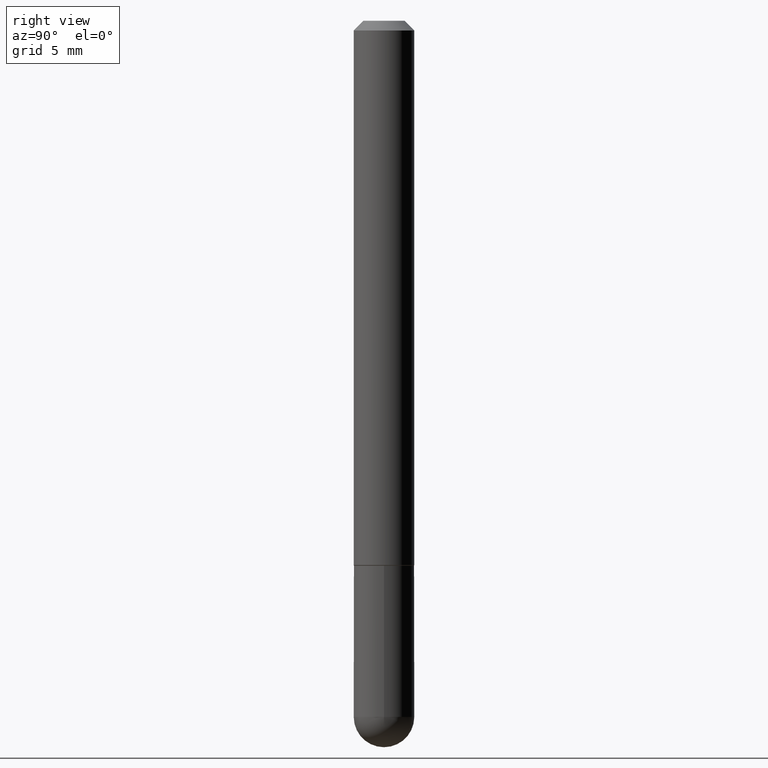
[diagram: clean part render]
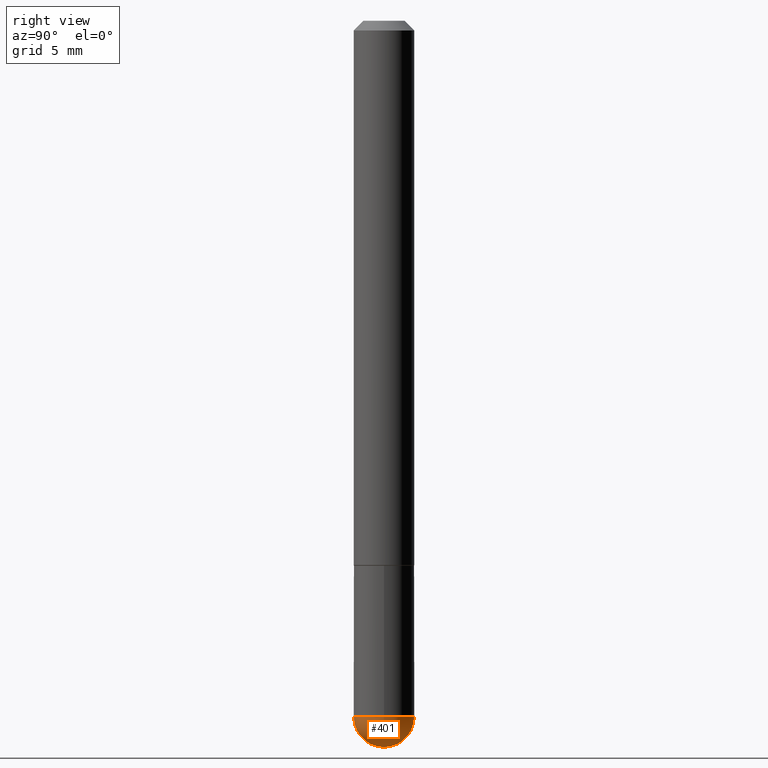
[diagram: same view with one face highlighted and labeled with its STEP entity id]
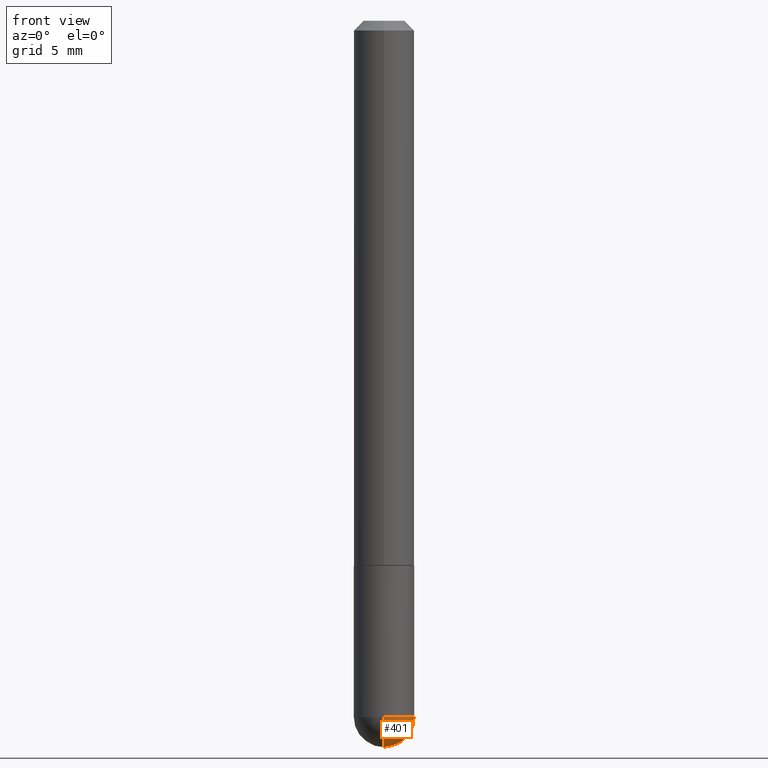
[diagram: same view with one face highlighted and labeled with its STEP entity id]
A machine part, right view. The second image highlights one B-rep face of the part: STEP entity #401.
A second angle (front view) of the same face is appended — the face is thin or edge-on in the first view.
In plain terms, the highlighted spherical surface has radius 1.5875 mm.
Its self-contained STEP definition (entity closure, byte-faithful):
#12 = EDGE_LOOP ( 'NONE', ( #211, #277, #181, #95 ) ) ;
#32 = CIRCLE ( 'NONE', #269, 0.06249999999999995143 ) ;
#49 = VERTEX_POINT ( 'NONE', #195 ) ;
#50 = AXIS2_PLACEMENT_3D ( 'NONE', #229, #352, #266 ) ;
#66 = FACE_OUTER_BOUND ( 'NONE', #12, .T. ) ;
#95 = ORIENTED_EDGE ( 'NONE', *, *, #118, .F. ) ;
#102 = SPHERICAL_SURFACE ( 'NONE', #50, 0.06250000000000018041 ) ;
#118 = EDGE_CURVE ( 'NONE', #370, #363, #32, .T. ) ;
#156 = DIRECTION ( 'NONE',  ( 6.982962677686266711E-15, 1.000000000000000000, 0.000000000000000000 ) ) ;
#157 = DIRECTION ( 'NONE',  ( 1.000000000000000000, -6.982962677686268288E-15, 0.000000000000000000 ) ) ;
#158 = DIRECTION ( 'NONE',  ( -7.105427357601001859E-15, -1.000000000000000000, 0.000000000000000000 ) ) ;
#181 = ORIENTED_EDGE ( 'NONE', *, *, #395, .F. ) ;
#183 = CARTESIAN_POINT ( 'NONE',  ( 3.184241630977247611E-29, -5.493186792727071849E-15, -1.437500000000000000 ) ) ;
#195 = CARTESIAN_POINT ( 'NONE',  ( 4.364351673554256397E-16, 0.06249999999999480971, -1.437500000000000444 ) ) ;
#196 = AXIS2_PLACEMENT_3D ( 'NONE', #384, #353, #263 ) ;
#203 = CIRCLE ( 'NONE', #196, 0.06249999999999995143 ) ;
#208 = AXIS2_PLACEMENT_3D ( 'NONE', #280, #309, #156 ) ;
#211 = ORIENTED_EDGE ( 'NONE', *, *, #271, .F. ) ;
#221 = CIRCLE ( 'NONE', #298, 0.06250000000000018041 ) ;
#223 = EDGE_CURVE ( 'NONE', #225, #49, #314, .T. ) ;
#225 = VERTEX_POINT ( 'NONE', #404 ) ;
#229 = CARTESIAN_POINT ( 'NONE',  ( 3.184241630977247611E-29, -5.493186792727071849E-15, -1.437500000000000000 ) ) ;
#250 = CARTESIAN_POINT ( 'NONE',  ( 3.515361408891134418E-29, -5.019004424587023131E-15, -1.437500000000000222 ) ) ;
#263 = DIRECTION ( 'NONE',  ( 1.000000000000000000, -6.982962677686268288E-15, 0.000000000000000000 ) ) ;
#266 = DIRECTION ( 'NONE',  ( 6.982962677686265922E-15, 1.000000000000000000, -4.370956789862807739E-15 ) ) ;
#269 = AXIS2_PLACEMENT_3D ( 'NONE', #250, #400, #157 ) ;
#271 = EDGE_CURVE ( 'NONE', #225, #370, #221, .T. ) ;
#277 = ORIENTED_EDGE ( 'NONE', *, *, #223, .T. ) ;
#280 = CARTESIAN_POINT ( 'NONE',  ( 3.184241630977247611E-29, -5.493186792727071849E-15, -1.437500000000000000 ) ) ;
#298 = AXIS2_PLACEMENT_3D ( 'NONE', #183, #340, #158 ) ;
#309 = DIRECTION ( 'NONE',  ( 1.000000000000000000, -6.982962677686265922E-15, 4.883557194083112340E-29 ) ) ;
#314 = CIRCLE ( 'NONE', #208, 0.06250000000000018041 ) ;
#322 = CARTESIAN_POINT ( 'NONE',  ( -4.440892098500294840E-16, -0.06250000000000532907, -1.437500000000000000 ) ) ;
#340 = DIRECTION ( 'NONE',  ( -1.000000000000000000, 7.105427357601001070E-15, -4.926315508542082329E-29 ) ) ;
#349 = CARTESIAN_POINT ( 'NONE',  ( 0.06249999999999995143, -4.909895632748172453E-15, -1.437500000000000222 ) ) ;
#352 = DIRECTION ( 'NONE',  ( -1.000000000000000000, 6.982962677686265922E-15, -4.883557194083112340E-29 ) ) ;
#353 = DIRECTION ( 'NONE',  ( -2.445468806185136597E-29, 3.491481338843145583E-15, 1.000000000000000000 ) ) ;
#363 = VERTEX_POINT ( 'NONE', #349 ) ;
#370 = VERTEX_POINT ( 'NONE', #322 ) ;
#384 = CARTESIAN_POINT ( 'NONE',  ( 3.515361408891134418E-29, -5.019004424587023131E-15, -1.437500000000000222 ) ) ;
#395 = EDGE_CURVE ( 'NONE', #363, #49, #203, .T. ) ;
#400 = DIRECTION ( 'NONE',  ( -2.445468806185136597E-29, 3.491481338843145583E-15, 1.000000000000000000 ) ) ;
#401 = ADVANCED_FACE ( 'NONE', ( #66 ), #102, .T. ) ;
#404 = CARTESIAN_POINT ( 'NONE',  ( 3.339755826017505008E-29, -5.707577355157432999E-15, -1.500000000000000222 ) ) ;